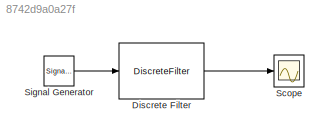
MODEL slx_8742d9a0a27f
KIND model
CONFIG AbsTol = auto
CONFIG EnableMultiTasking = off
CONFIG FixedStep = auto
CONFIG MaxStep = auto
CONFIG MinStep = auto
CONFIG RelTol = 1e-3
CONFIG SampleTimeConstraint = Unconstrained
CONFIG Solver = VariableStepAuto
CONFIG SolverName = VariableStepAuto
CONFIG StartTime = 0.0
CONFIG StopTime = 0.25
BLOCK [DiscreteFilter] Discrete Filter
  Denominator = denLow
  FilterStructure = Direct form II transposed
  InputPortMap = u0
  InputProcessing = Columns as channels (frame based)
  Numerator = numLow
  Ports = [1, 1]
  SampleTime = 1/400
  a0EqualsOne = on
BLOCK [Scope] Scope
  Floating = off
  NumInputPorts = 1
  Ports = [1]
  ScopeSpecificationString = Simulink.scopes.TimeScopeBlockCfg('CurrentConfiguration', extmgr.ConfigurationSet(extmgr.Configuration('Core','General UI',true),extmgr.Configuration('Core','Source UI',true),extmgr.Configuration('Sources','WiredSimulink',true),extmgr.Configuration('Visuals','Time Domain',true,'SerializedDisplays',{struct('MinYLimReal','-1.09141','MaxYLimReal','1.09141','YLabelReal','','MinYLimMag','0.00000','MaxY...<+1432ch>
BLOCK [SignalGenerator] Signal Generator
  Frequency = 180
  Ports = [0, 1]
LINE Discrete Filter:1 -> Scope:1
LINE Signal Generator:1 -> Discrete Filter:1
